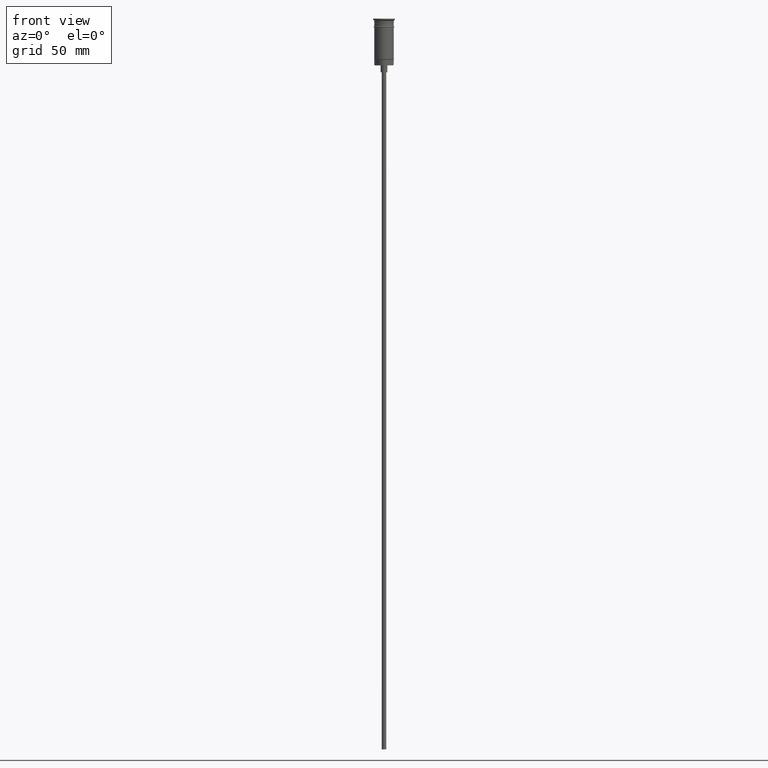
[diagram: clean part render]
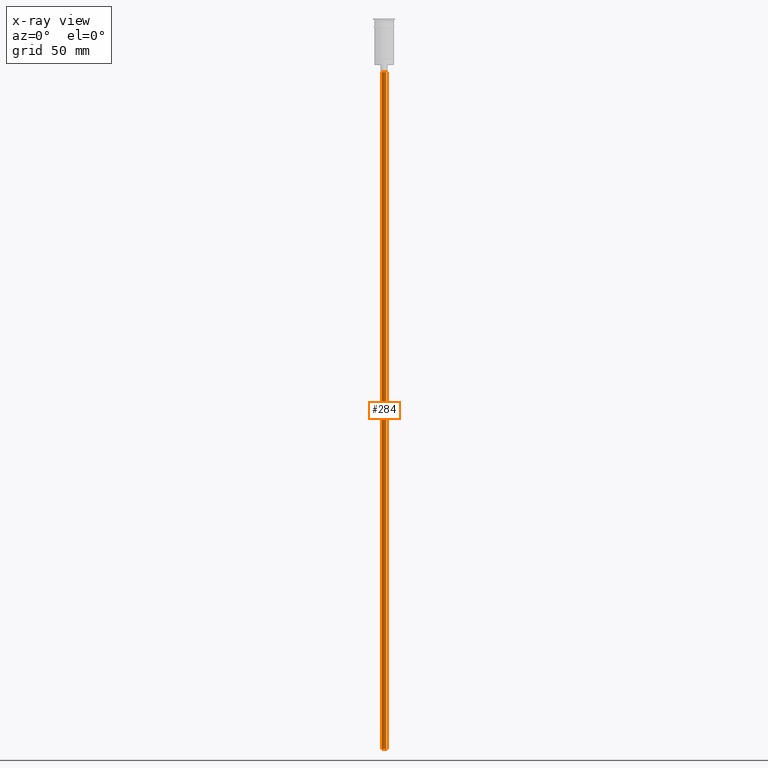
[diagram: x-ray — body ghosted, one internal face saturated and labeled with its STEP entity id]
A machine part, front view, then the same camera in x-ray: the body is ghosted and one INTERNAL B-rep face — a face not visible from any outside direction — is saturated and labeled: STEP entity #284.
In plain terms, the highlighted cylindrical surface (edge-blend (fillet) strip) has radius 1 mm, axis along (-0, -0, 1).
Its self-contained STEP definition (entity closure, byte-faithful):
#25 = CYLINDRICAL_SURFACE ( 'NONE', #375, 0.9999999999999997780 ) ;
#38 = LINE ( 'NONE', #535, #1033 ) ;
#44 = FACE_OUTER_BOUND ( 'NONE', #1422, .T. ) ;
#92 = CARTESIAN_POINT ( 'NONE',  ( 0.9999999999999997780, 0.000000000000000000, -23.49999999999999645 ) ) ;
#120 = CIRCLE ( 'NONE', #1223, 0.9999999999999997780 ) ;
#157 = EDGE_CURVE ( 'NONE', #1136, #711, #611, .T. ) ;
#224 = ORIENTED_EDGE ( 'NONE', *, *, #1545, .F. ) ;
#284 = ADVANCED_FACE ( 'NONE', ( #44 ), #25, .T. ) ;
#375 = AXIS2_PLACEMENT_3D ( 'NONE', #539, #1167, #516 ) ;
#439 = CARTESIAN_POINT ( 'NONE',  ( 0.9999999999999997780, 0.000000000000000000, -320.5000000000000000 ) ) ;
#516 = DIRECTION ( 'NONE',  ( 1.000000000000000000, 0.000000000000000000, 0.000000000000000000 ) ) ;
#535 = CARTESIAN_POINT ( 'NONE',  ( 0.9999999999999997780, 0.000000000000000000, -320.5000000000000000 ) ) ;
#539 = CARTESIAN_POINT ( 'NONE',  ( 0.000000000000000000, 0.000000000000000000, -320.5000000000000000 ) ) ;
#611 = LINE ( 'NONE', #886, #868 ) ;
#616 = CARTESIAN_POINT ( 'NONE',  ( 0.000000000000000000, 0.000000000000000000, -23.49999999999999645 ) ) ;
#630 = ORIENTED_EDGE ( 'NONE', *, *, #823, .T. ) ;
#642 = CARTESIAN_POINT ( 'NONE',  ( -0.9999999999999997780, 1.224646799147352961E-16, -23.49999999999999645 ) ) ;
#711 = VERTEX_POINT ( 'NONE', #642 ) ;
#725 = DIRECTION ( 'NONE',  ( -1.000000000000000000, 0.000000000000000000, 0.000000000000000000 ) ) ;
#743 = DIRECTION ( 'NONE',  ( 0.000000000000000000, 0.000000000000000000, -1.000000000000000000 ) ) ;
#758 = CARTESIAN_POINT ( 'NONE',  ( -0.9999999999999997780, 1.224646799147352961E-16, -320.5000000000000000 ) ) ;
#794 = VERTEX_POINT ( 'NONE', #439 ) ;
#823 = EDGE_CURVE ( 'NONE', #794, #1091, #38, .T. ) ;
#854 = DIRECTION ( 'NONE',  ( 0.000000000000000000, 0.000000000000000000, -1.000000000000000000 ) ) ;
#868 = VECTOR ( 'NONE', #1104, 1000.000000000000000 ) ;
#886 = CARTESIAN_POINT ( 'NONE',  ( -0.9999999999999997780, 1.224646799147352961E-16, -320.5000000000000000 ) ) ;
#931 = EDGE_CURVE ( 'NONE', #1091, #711, #120, .T. ) ;
#1033 = VECTOR ( 'NONE', #1521, 1000.000000000000000 ) ;
#1091 = VERTEX_POINT ( 'NONE', #92 ) ;
#1102 = CIRCLE ( 'NONE', #1207, 0.9999999999999997780 ) ;
#1104 = DIRECTION ( 'NONE',  ( -0.000000000000000000, -0.000000000000000000, 1.000000000000000000 ) ) ;
#1114 = DIRECTION ( 'NONE',  ( -1.000000000000000000, 0.000000000000000000, 0.000000000000000000 ) ) ;
#1136 = VERTEX_POINT ( 'NONE', #758 ) ;
#1167 = DIRECTION ( 'NONE',  ( -0.000000000000000000, -0.000000000000000000, 1.000000000000000000 ) ) ;
#1207 = AXIS2_PLACEMENT_3D ( 'NONE', #1497, #743, #1114 ) ;
#1223 = AXIS2_PLACEMENT_3D ( 'NONE', #616, #854, #725 ) ;
#1280 = ORIENTED_EDGE ( 'NONE', *, *, #931, .T. ) ;
#1422 = EDGE_LOOP ( 'NONE', ( #1556, #224, #630, #1280 ) ) ;
#1497 = CARTESIAN_POINT ( 'NONE',  ( 0.000000000000000000, 0.000000000000000000, -320.5000000000000000 ) ) ;
#1521 = DIRECTION ( 'NONE',  ( -0.000000000000000000, -0.000000000000000000, 1.000000000000000000 ) ) ;
#1545 = EDGE_CURVE ( 'NONE', #794, #1136, #1102, .T. ) ;
#1556 = ORIENTED_EDGE ( 'NONE', *, *, #157, .F. ) ;